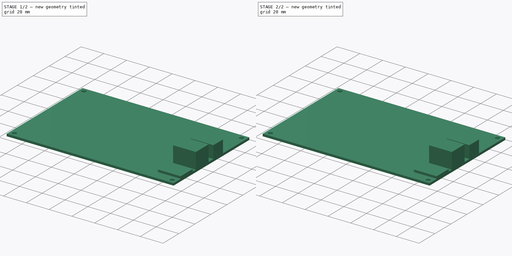
[diagram: build sequence overview — one tinted view per stage of 2, left to right]
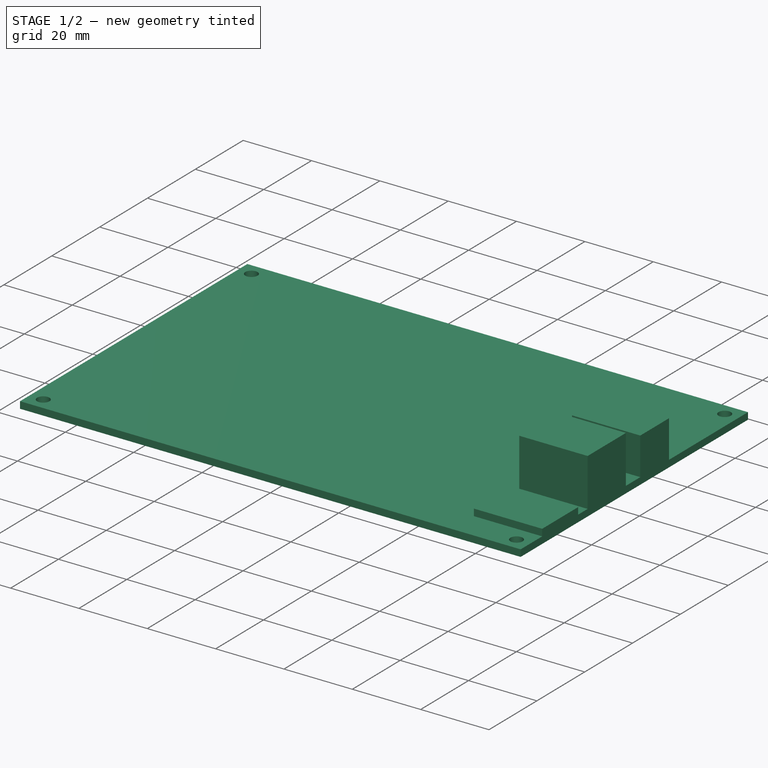
[diagram: stage 1 of 2 — iso view after this stage's code; geometry added in this stage tinted green]
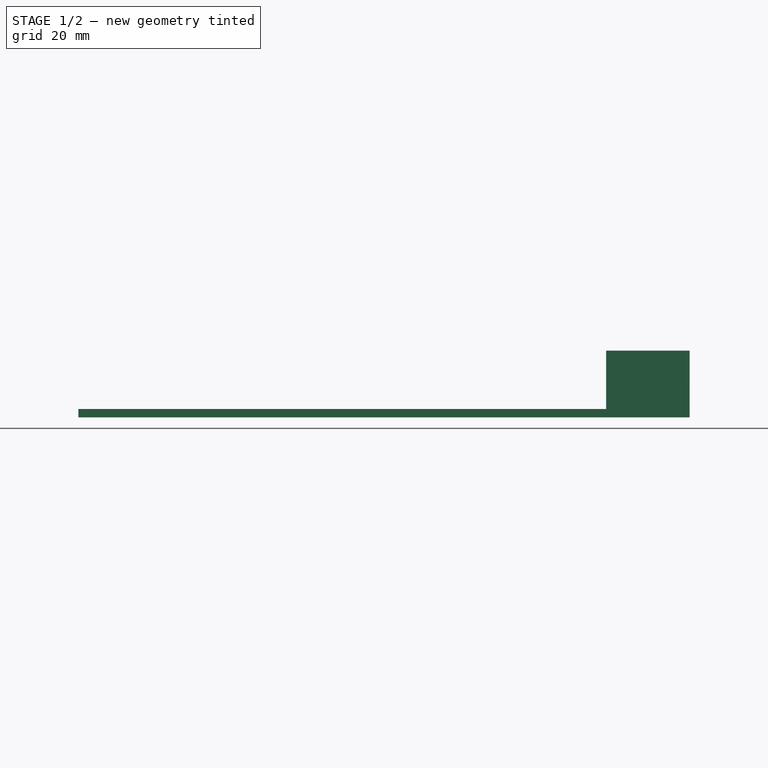
[diagram: stage 1 of 2 — front view after this stage's code; geometry added in this stage tinted green]
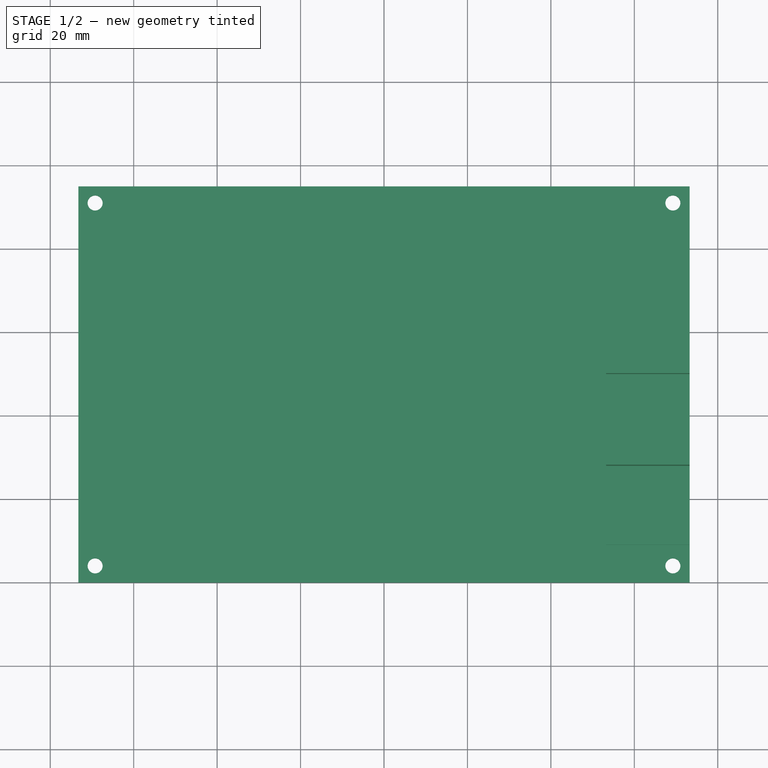
[diagram: stage 1 of 2 — top view after this stage's code; geometry added in this stage tinted green]
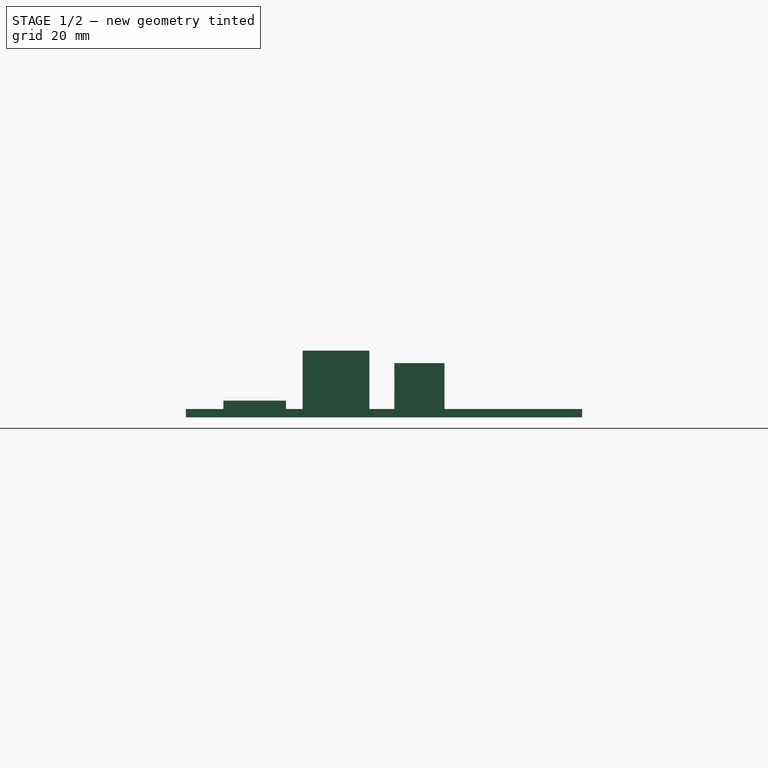
[diagram: stage 1 of 2 — right view after this stage's code; geometry added in this stage tinted green]
FCSTD DOCUMENT  (FreeCAD 0.16R6706 (Git))
Label: MKS V13
License: All rights reserved
LicenseURL: http://en.wikipedia.org/wiki/All_rights_reserved
objects: Sketcher::SketchObject×2, PartDesign::Pad×2, Part::MultiFuse×1
note: 7 computed .brp shape members not serialized (recipe doc carries the construction recipe); baked Part::Feature solids carry a one-line shape summary decoded from their .brp

FEATURE [Sketcher::SketchObject] Sketch
  sketch-geometry (13):
    g0: LineSegment StartX=-73.25 StartY=95 StartZ=0 EndX=73.25 EndY=95 EndZ=0
    g1: LineSegment StartX=73.25 StartY=95 StartZ=0 EndX=73.25 EndY=0 EndZ=0
    g2: LineSegment StartX=73.25 StartY=0 StartZ=0 EndX=-73.25 EndY=0 EndZ=0
    g3: LineSegment StartX=-73.25 StartY=0 StartZ=0 EndX=-73.25 EndY=95 EndZ=0
    g4: GeomPoint [constr] X=0 Y=47.5 Z=0
    g5: LineSegment [constr] StartX=-69.25 StartY=91 StartZ=0 EndX=69.25 EndY=91 EndZ=0
    g6: LineSegment [constr] StartX=69.25 StartY=91 StartZ=0 EndX=69.25 EndY=4 EndZ=0
    g7: LineSegment [constr] StartX=69.25 StartY=4 StartZ=0 EndX=-69.25 EndY=4 EndZ=0
    g8: LineSegment [constr] StartX=-69.25 StartY=4 StartZ=0 EndX=-69.25 EndY=91 EndZ=0
    g9: Circle CenterX=-69.25 CenterY=91 CenterZ=0 NormalX=0 NormalY=0 NormalZ=1 Radius=1.8
    g10: Circle CenterX=69.25 CenterY=91 CenterZ=0 NormalX=0 NormalY=0 NormalZ=1 Radius=1.8
    g11: Circle CenterX=69.25 CenterY=4 CenterZ=0 NormalX=0 NormalY=0 NormalZ=1 Radius=1.8
    g12: Circle CenterX=-69.25 CenterY=4 CenterZ=0 NormalX=0 NormalY=0 NormalZ=1 Radius=1.8
  constraints (31):
    c: Coincident(g0,g1)
    c: Coincident(g1,g2)
    c: Coincident(g2,g3)
    c: Coincident(g3,g0)
    c: Horizontal(g0)
    c: Horizontal(g2)
    c: Vertical(g1)
    c: Vertical(g3)
    c: Symmetric(g2,g1,g-1)
    c: DistanceX(g2,g2) = 146.5
    c: DistanceY(g3,g3) = 95
    c: Symmetric(g2,g0,g4)
    c: Coincident(g5,g6)
    c: Coincident(g6,g7)
    c: Coincident(g7,g8)
    c: Coincident(g8,g5)
    c: Horizontal(g5)
    c: Horizontal(g7)
    c: Vertical(g6)
    c: Vertical(g8)
    c: Symmetric(g7,g5,g4)
    c: DistanceX(g2,g7) = 4
    c: DistanceY(g2,g7) = 4
    c: Radius(g9) = 1.8
    c: Equal(g9,g10) = 1.8
    c: Equal(g9,g11) = 1.8
    c: Equal(g9,g12) = 1.8
    c: Coincident(g9,g5)
    c: Coincident(g12,g7)
    c: Coincident(g5,g10)
    c: Coincident(g6,g11)
FEATURE [PartDesign::Pad] Pad
  Length = 2
  Length2 = 100
  Sketch = -> Sketch
  Type = 0
FEATURE [Sketcher::SketchObject] Sketch001
  Placement = pos=(73.25,0,0) rot=(-0.57735,0.57735,0.57735;4.18879rad)
  sketch-geometry (12):
    g0: LineSegment StartX=-9 StartY=2 StartZ=0 EndX=-24 EndY=2 EndZ=0
    g1: LineSegment StartX=-24 StartY=2 StartZ=0 EndX=-24 EndY=4 EndZ=0
    g2: LineSegment StartX=-24 StartY=4 StartZ=0 EndX=-9 EndY=4 EndZ=0
    g3: LineSegment StartX=-9 StartY=4 StartZ=0 EndX=-9 EndY=2 EndZ=0
    g4: LineSegment StartX=-28 StartY=2 StartZ=0 EndX=-44 EndY=2 EndZ=0
    g5: LineSegment StartX=-44 StartY=2 StartZ=0 EndX=-44 EndY=16 EndZ=0
    g6: LineSegment StartX=-44 StartY=16 StartZ=0 EndX=-28 EndY=16 EndZ=0
    g7: LineSegment StartX=-28 StartY=16 StartZ=0 EndX=-28 EndY=2 EndZ=0
    g8: LineSegment StartX=-50 StartY=2 StartZ=0 EndX=-62 EndY=2 EndZ=0
    g9: LineSegment StartX=-62 StartY=2 StartZ=0 EndX=-62 EndY=13 EndZ=0
    g10: LineSegment StartX=-62 StartY=13 StartZ=0 EndX=-50 EndY=13 EndZ=0
    g11: LineSegment StartX=-50 StartY=13 StartZ=0 EndX=-50 EndY=2 EndZ=0
  constraints (36):
    c: Coincident(g0,g1)
    c: Coincident(g1,g2)
    c: Coincident(g2,g3)
    c: Coincident(g3,g0)
    c: Horizontal(g0)
    c: Horizontal(g2)
    c: Vertical(g1)
    c: Vertical(g3)
    c: Coincident(g4,g5)
    c: Coincident(g5,g6)
    c: Coincident(g6,g7)
    c: Coincident(g7,g4)
    c: Horizontal(g4)
    c: Horizontal(g6)
    c: Vertical(g5)
    c: Vertical(g7)
    c: Coincident(g8,g9)
    c: Coincident(g9,g10)
    c: Coincident(g10,g11)
    c: Coincident(g11,g8)
    c: Horizontal(g8)
    c: Horizontal(g10)
    c: Vertical(g9)
    c: Vertical(g11)
    c: DistanceY(g-1,g0) = 2
    c: PointOnObject(g4,g0)
    c: PointOnObject(g8,g0)
    c: DistanceX(g0,g-1) = 9
    c: DistanceX(g2,g2) = 15
    c: DistanceY(g3,g3) = 2
    c: DistanceX(g4,g-1) = 28
    c: DistanceX(g6,g6) = 16
    c: DistanceY(g5,g5) = 14
    c: DistanceX(g8,g4) = 6
    c: DistanceX(g10,g10) = 12
    c: DistanceY(g9,g9) = 11
FEATURE [PartDesign::Pad] Pad001
  Length = 20
  Length2 = 100
  Placement = pos=(73.25,0,0) rot=(-0.57735,0.57735,0.57735;4.18879rad)
  Sketch = -> Sketch001
  Type = 0
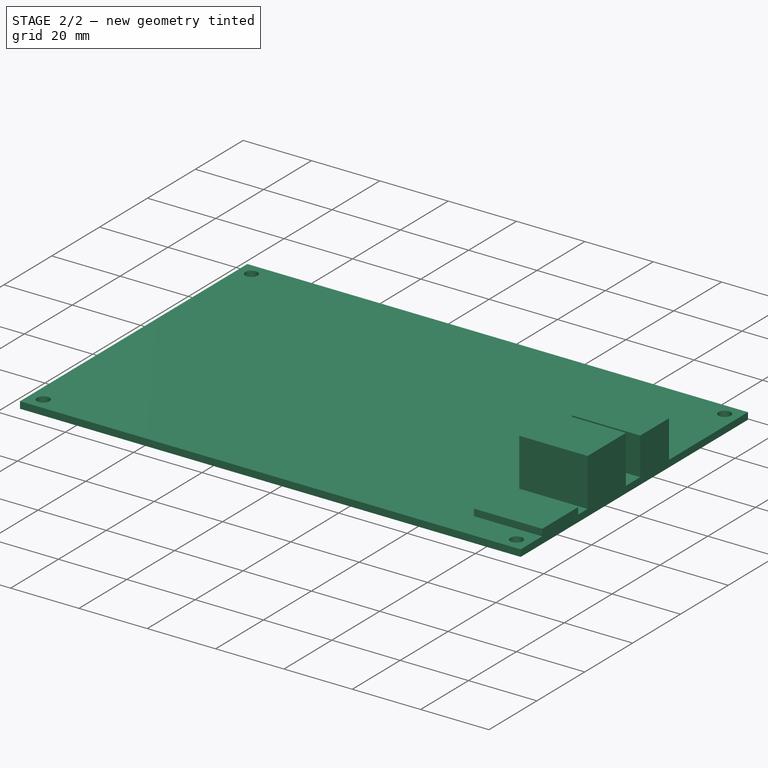
[diagram: stage 2 of 2 — iso view after this stage's code; geometry added in this stage tinted green]
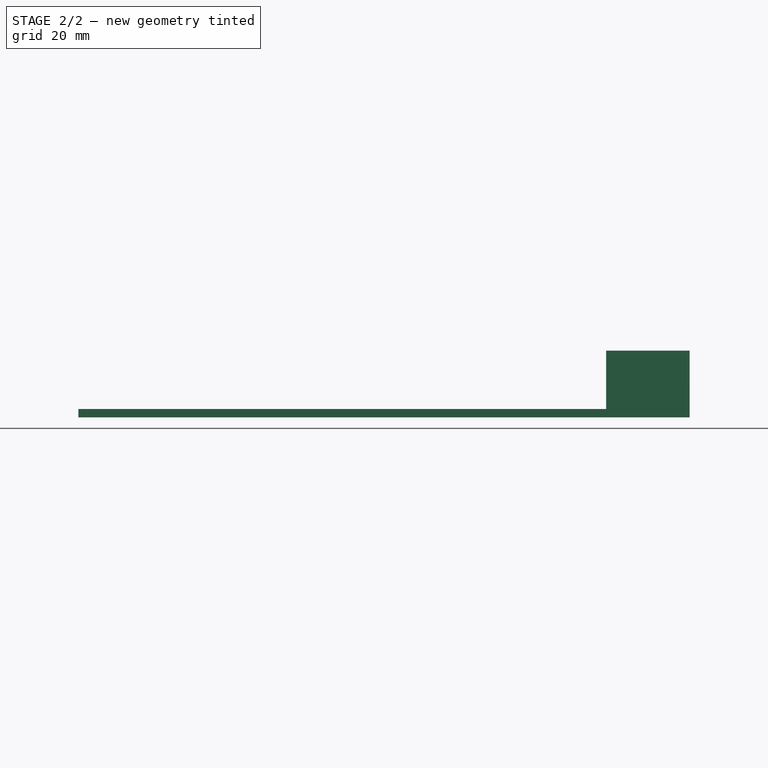
[diagram: stage 2 of 2 — front view after this stage's code; geometry added in this stage tinted green]
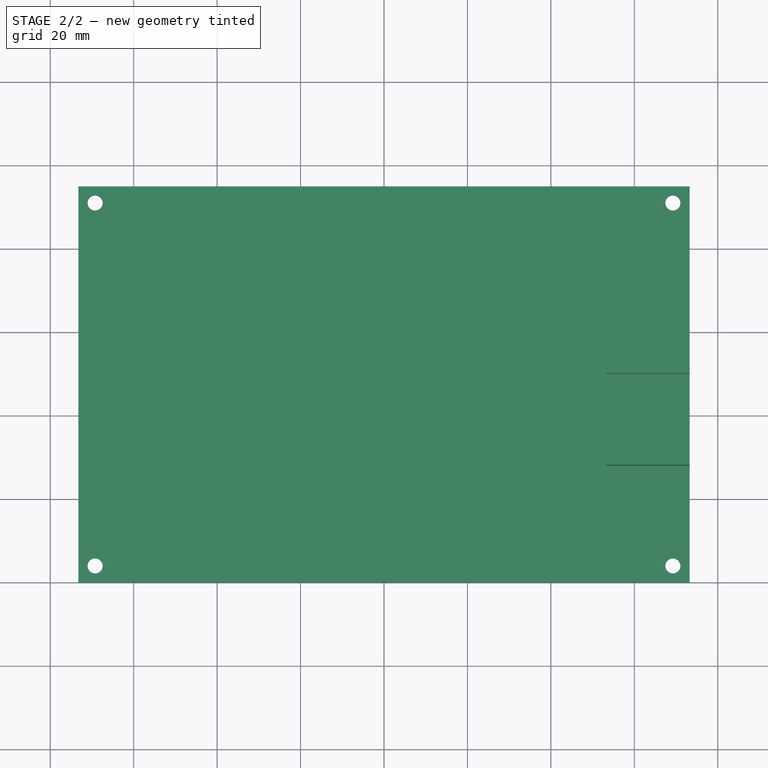
[diagram: stage 2 of 2 — top view after this stage's code; geometry added in this stage tinted green]
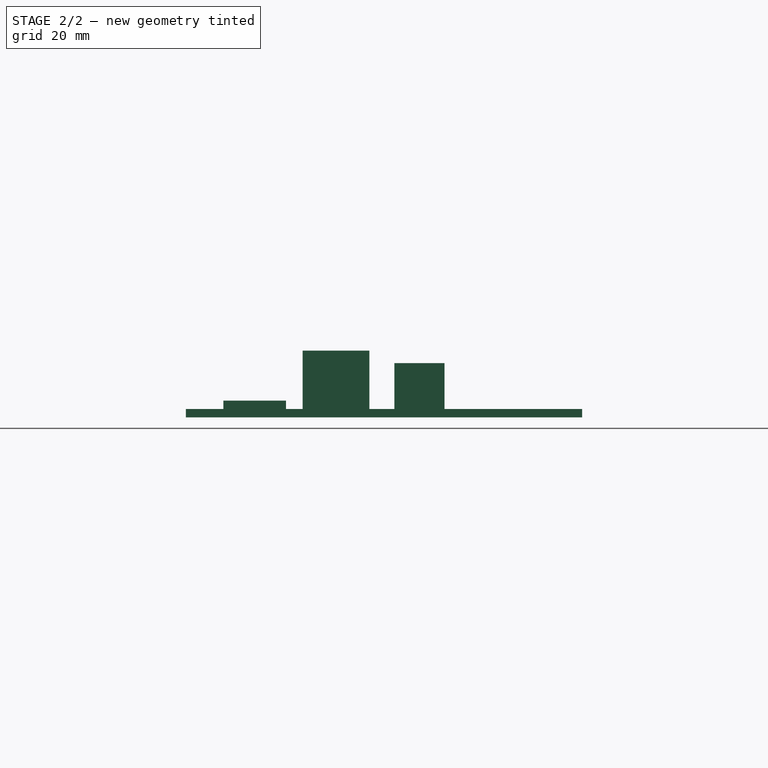
[diagram: stage 2 of 2 — right view after this stage's code; geometry added in this stage tinted green]
FEATURE [Part::MultiFuse] Fusion
  Shapes = -> [Pad,Pad001]
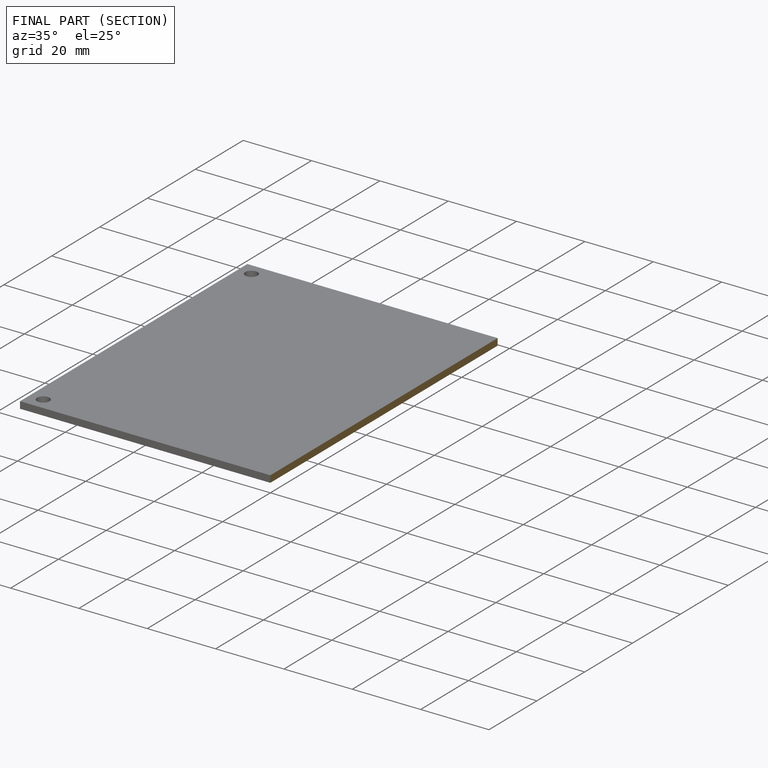
[diagram: finished part — half-section view (interior)]
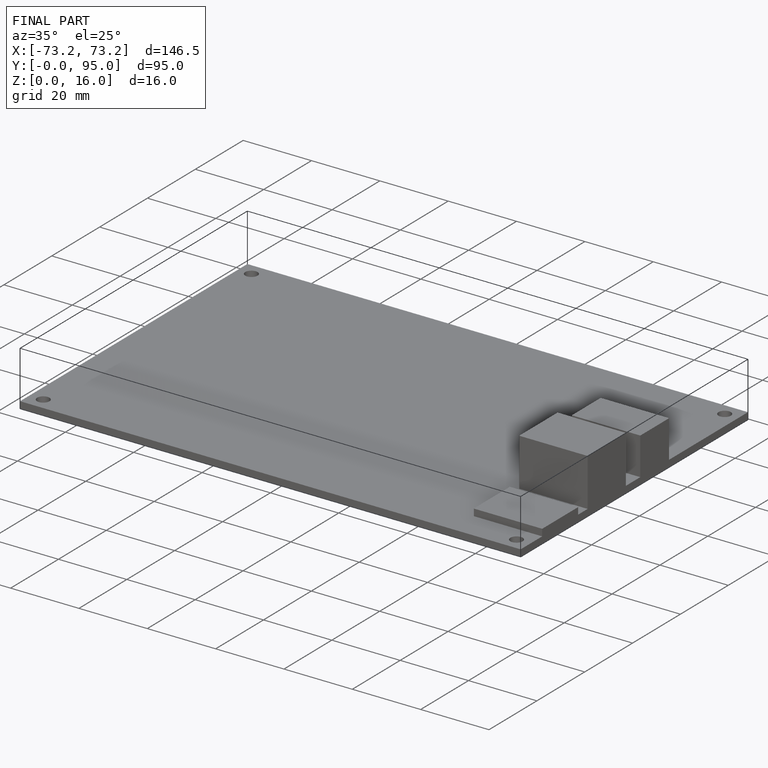
[diagram: finished part — iso view with bounding-box wireframe]
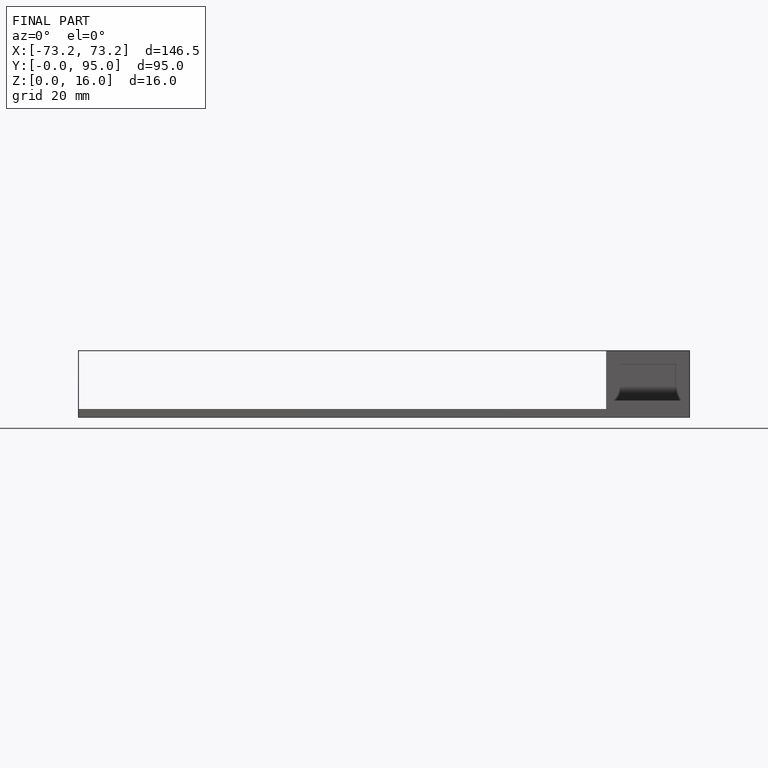
[diagram: finished part — front view with bounding-box wireframe]
